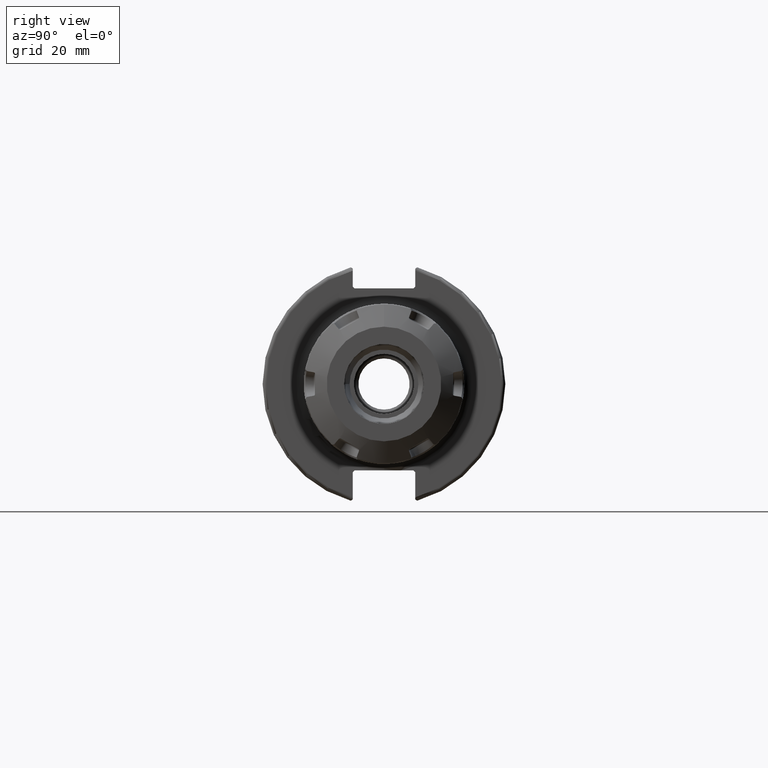
[diagram: clean part render]
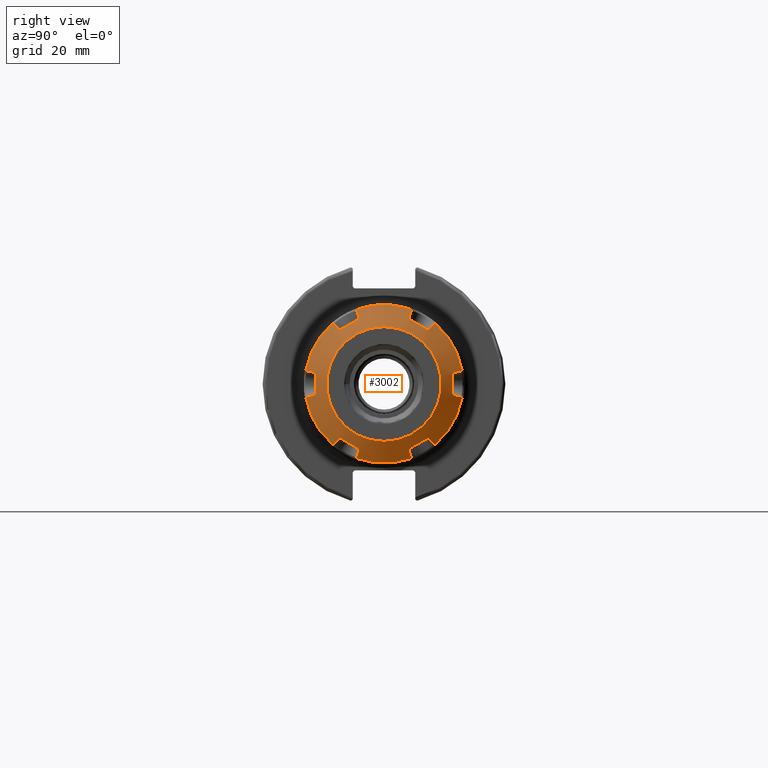
[diagram: same view with one face highlighted and labeled with its STEP entity id]
A machine part, right view. The second image highlights one B-rep face of the part: STEP entity #3002.
In plain terms, the highlighted conical surface has half-angle 60 deg.
Its self-contained STEP definition (entity closure, byte-faithful):
#181=B_SPLINE_CURVE_WITH_KNOTS('',3,(#5156,#5157,#5158,#5159,#5160),
 .UNSPECIFIED.,.F.,.F.,(4,1,4),(0.,0.5,1.),.UNSPECIFIED.);
#182=B_SPLINE_CURVE_WITH_KNOTS('',3,(#5164,#5165,#5166,#5167,#5168,#5169,
#5170,#5171,#5172,#5173),.UNSPECIFIED.,.F.,.F.,(4,2,2,2,4),(0.000528578936882645,
0.0215655882195211,0.0431311764390421,0.0615000722303087,0.0730576288802265),
 .UNSPECIFIED.);
#183=B_SPLINE_CURVE_WITH_KNOTS('',3,(#5175,#5176,#5177,#5178,#5179,#5180,
#5181),.UNSPECIFIED.,.F.,.F.,(4,1,1,1,4),(0.,0.25,0.5,0.75,1.),
 .UNSPECIFIED.);
#184=B_SPLINE_CURVE_WITH_KNOTS('',3,(#5183,#5184,#5185,#5186,#5187,#5188,
#5189,#5190,#5191,#5192),.UNSPECIFIED.,.F.,.F.,(4,2,2,2,4),(0.252069009809256,
0.263626566458915,0.281995462250182,0.303561050469703,0.324598059752141),
 .UNSPECIFIED.);
#185=B_SPLINE_CURVE_WITH_KNOTS('',3,(#5196,#5197,#5198,#5199,#5200),
 .UNSPECIFIED.,.F.,.F.,(4,1,4),(0.,0.5,1.),.UNSPECIFIED.);
#186=B_SPLINE_CURVE_WITH_KNOTS('',3,(#5204,#5205,#5206,#5207,#5208),
 .UNSPECIFIED.,.F.,.F.,(4,1,4),(0.,0.5,1.),.UNSPECIFIED.);
#187=B_SPLINE_CURVE_WITH_KNOTS('',3,(#5212,#5213,#5214,#5215,#5216,#5217,
#5218,#5219,#5220,#5221),.UNSPECIFIED.,.F.,.F.,(4,2,2,2,4),(0.000528578936294754,
0.0215655882195209,0.0431311764390418,0.0615000722303084,0.073057628880325),
 .UNSPECIFIED.);
#188=B_SPLINE_CURVE_WITH_KNOTS('',3,(#5223,#5224,#5225,#5226,#5227,#5228,
#5229),.UNSPECIFIED.,.F.,.F.,(4,1,1,1,4),(0.,0.25,0.5,0.75,1.),
 .UNSPECIFIED.);
#189=B_SPLINE_CURVE_WITH_KNOTS('',3,(#5231,#5232,#5233,#5234,#5235,#5236,
#5237,#5238,#5239,#5240),.UNSPECIFIED.,.F.,.F.,(4,2,2,2,4),(0.252069009808898,
0.263626566458915,0.281995462250181,0.303561050469702,0.324598059752928),
 .UNSPECIFIED.);
#190=B_SPLINE_CURVE_WITH_KNOTS('',3,(#5244,#5245,#5246,#5247,#5248),
 .UNSPECIFIED.,.F.,.F.,(4,1,4),(0.,0.5,1.),.UNSPECIFIED.);
#191=B_SPLINE_CURVE_WITH_KNOTS('',3,(#5252,#5253,#5254,#5255,#5256),
 .UNSPECIFIED.,.F.,.F.,(4,1,4),(0.,0.5,1.),.UNSPECIFIED.);
#192=B_SPLINE_CURVE_WITH_KNOTS('',3,(#5260,#5261,#5262,#5263,#5264,#5265,
#5266,#5267,#5268,#5269),.UNSPECIFIED.,.F.,.F.,(4,2,2,2,4),(0.000528578937082939,
0.021565588219521,0.0431311764390419,0.0615000722303086,0.0730576288799682),
 .UNSPECIFIED.);
#193=B_SPLINE_CURVE_WITH_KNOTS('',3,(#5271,#5272,#5273,#5274,#5275,#5276,
#5277),.UNSPECIFIED.,.F.,.F.,(4,1,1,1,4),(0.,0.25,0.5,0.75,1.),
 .UNSPECIFIED.);
#194=B_SPLINE_CURVE_WITH_KNOTS('',3,(#5279,#5280,#5281,#5282,#5283,#5284,
#5285,#5286,#5287,#5288),.UNSPECIFIED.,.F.,.F.,(4,2,2,2,4),(0.252069009808997,
0.263626566458915,0.281995462250181,0.303561050469702,0.324598059752341),
 .UNSPECIFIED.);
#195=B_SPLINE_CURVE_WITH_KNOTS('',3,(#5292,#5293,#5294,#5295,#5296),
 .UNSPECIFIED.,.F.,.F.,(4,1,4),(0.,0.5,1.),.UNSPECIFIED.);
#196=B_SPLINE_CURVE_WITH_KNOTS('',3,(#5300,#5301,#5302,#5303,#5304),
 .UNSPECIFIED.,.F.,.F.,(4,1,4),(0.,0.5,1.),.UNSPECIFIED.);
#197=B_SPLINE_CURVE_WITH_KNOTS('',3,(#5308,#5309,#5310,#5311,#5312,#5313,
#5314,#5315,#5316,#5317),.UNSPECIFIED.,.F.,.F.,(4,2,2,2,4),(0.000528578936882645,
0.0215655882195211,0.0431311764390421,0.0615000722303087,0.0730576288802265),
 .UNSPECIFIED.);
#198=B_SPLINE_CURVE_WITH_KNOTS('',3,(#5319,#5320,#5321,#5322,#5323,#5324,
#5325),.UNSPECIFIED.,.F.,.F.,(4,1,1,1,4),(0.,0.25,0.5,0.75,1.),
 .UNSPECIFIED.);
#199=B_SPLINE_CURVE_WITH_KNOTS('',3,(#5327,#5328,#5329,#5330,#5331,#5332,
#5333,#5334,#5335,#5336),.UNSPECIFIED.,.F.,.F.,(4,2,2,2,4),(0.252069009809255,
0.263626566458915,0.281995462250182,0.303561050469703,0.324598059752141),
 .UNSPECIFIED.);
#200=B_SPLINE_CURVE_WITH_KNOTS('',3,(#5340,#5341,#5342,#5343,#5344),
 .UNSPECIFIED.,.F.,.F.,(4,1,4),(0.,0.5,1.),.UNSPECIFIED.);
#201=B_SPLINE_CURVE_WITH_KNOTS('',3,(#5348,#5349,#5350,#5351,#5352),
 .UNSPECIFIED.,.F.,.F.,(4,1,4),(0.,0.5,1.),.UNSPECIFIED.);
#202=B_SPLINE_CURVE_WITH_KNOTS('',3,(#5356,#5357,#5358,#5359,#5360,#5361,
#5362,#5363,#5364,#5365),.UNSPECIFIED.,.F.,.F.,(4,2,2,2,4),(0.000528578936294754,
0.0215655882195209,0.0431311764390418,0.0615000722303084,0.0730576288803251),
 .UNSPECIFIED.);
#203=B_SPLINE_CURVE_WITH_KNOTS('',3,(#5367,#5368,#5369,#5370,#5371,#5372,
#5373),.UNSPECIFIED.,.F.,.F.,(4,1,1,1,4),(0.,0.25,0.5,0.75,1.),
 .UNSPECIFIED.);
#204=B_SPLINE_CURVE_WITH_KNOTS('',3,(#5375,#5376,#5377,#5378,#5379,#5380,
#5381,#5382,#5383,#5384),.UNSPECIFIED.,.F.,.F.,(4,2,2,2,4),(0.252069009808898,
0.263626566458915,0.281995462250181,0.303561050469702,0.324598059752928),
 .UNSPECIFIED.);
#205=B_SPLINE_CURVE_WITH_KNOTS('',3,(#5388,#5389,#5390,#5391,#5392),
 .UNSPECIFIED.,.F.,.F.,(4,1,4),(0.,0.5,1.),.UNSPECIFIED.);
#206=B_SPLINE_CURVE_WITH_KNOTS('',3,(#5396,#5397,#5398,#5399,#5400),
 .UNSPECIFIED.,.F.,.F.,(4,1,4),(0.,0.5,1.),.UNSPECIFIED.);
#207=B_SPLINE_CURVE_WITH_KNOTS('',3,(#5404,#5405,#5406,#5407,#5408,#5409,
#5410,#5411,#5412,#5413),.UNSPECIFIED.,.F.,.F.,(4,2,2,2,4),(0.000528578937082939,
0.021565588219521,0.0431311764390419,0.0615000722303086,0.0730576288799681),
 .UNSPECIFIED.);
#208=B_SPLINE_CURVE_WITH_KNOTS('',3,(#5415,#5416,#5417,#5418,#5419,#5420,
#5421),.UNSPECIFIED.,.F.,.F.,(4,1,1,1,4),(0.,0.25,0.5,0.75,1.),
 .UNSPECIFIED.);
#209=B_SPLINE_CURVE_WITH_KNOTS('',3,(#5423,#5424,#5425,#5426,#5427,#5428,
#5429,#5430,#5431,#5432),.UNSPECIFIED.,.F.,.F.,(4,2,2,2,4),(0.252069009808997,
0.263626566458915,0.281995462250181,0.303561050469702,0.324598059752341),
 .UNSPECIFIED.);
#210=B_SPLINE_CURVE_WITH_KNOTS('',3,(#5436,#5437,#5438,#5439,#5440),
 .UNSPECIFIED.,.F.,.F.,(4,1,4),(0.,0.5,1.),.UNSPECIFIED.);
#499=FACE_OUTER_BOUND('',#690,.T.);
#690=EDGE_LOOP('',(#2517,#2518,#2519,#2520,#2521,#2522,#2523,#2524,#2525,
#2526,#2527,#2528,#2529,#2530,#2531,#2532,#2533,#2534,#2535,#2536,#2537,
#2538,#2539,#2540,#2541,#2542,#2543,#2544,#2545,#2546,#2547,#2548,#2549,
#2550,#2551,#2552,#2553,#2554,#2555,#2556,#2557,#2558,#2559,#2560,#2561,
#2562,#2563,#2564,#2565,#2566,#2567,#2568));
#859=LINE('',#5162,#1046);
#860=LINE('',#5194,#1047);
#861=LINE('',#5210,#1048);
#862=LINE('',#5242,#1049);
#863=LINE('',#5258,#1050);
#864=LINE('',#5290,#1051);
#865=LINE('',#5306,#1052);
#866=LINE('',#5338,#1053);
#867=LINE('',#5354,#1054);
#868=LINE('',#5386,#1055);
#869=LINE('',#5402,#1056);
#870=LINE('',#5434,#1057);
#871=LINE('',#5442,#1058);
#1046=VECTOR('',#4006,10.);
#1047=VECTOR('',#4007,10.);
#1048=VECTOR('',#4010,10.);
#1049=VECTOR('',#4011,10.);
#1050=VECTOR('',#4014,10.);
#1051=VECTOR('',#4015,10.);
#1052=VECTOR('',#4018,10.);
#1053=VECTOR('',#4019,10.);
#1054=VECTOR('',#4022,10.);
#1055=VECTOR('',#4023,10.);
#1056=VECTOR('',#4026,10.);
#1057=VECTOR('',#4027,10.);
#1058=VECTOR('',#4030,17.87499999999);
#1228=CIRCLE('',#3361,15.);
#1229=CIRCLE('',#3363,20.75);
#1230=CIRCLE('',#3364,20.75);
#1231=CIRCLE('',#3365,20.75);
#1232=CIRCLE('',#3366,20.75);
#1233=CIRCLE('',#3367,20.75);
#1234=CIRCLE('',#3368,20.75);
#1235=CIRCLE('',#3369,20.75);
#1441=VERTEX_POINT('',#5149);
#1442=VERTEX_POINT('',#5152);
#1443=VERTEX_POINT('',#5153);
#1444=VERTEX_POINT('',#5155);
#1445=VERTEX_POINT('',#5161);
#1446=VERTEX_POINT('',#5163);
#1447=VERTEX_POINT('',#5174);
#1448=VERTEX_POINT('',#5182);
#1449=VERTEX_POINT('',#5193);
#1450=VERTEX_POINT('',#5195);
#1451=VERTEX_POINT('',#5201);
#1452=VERTEX_POINT('',#5203);
#1453=VERTEX_POINT('',#5209);
#1454=VERTEX_POINT('',#5211);
#1455=VERTEX_POINT('',#5222);
#1456=VERTEX_POINT('',#5230);
#1457=VERTEX_POINT('',#5241);
#1458=VERTEX_POINT('',#5243);
#1459=VERTEX_POINT('',#5249);
#1460=VERTEX_POINT('',#5251);
#1461=VERTEX_POINT('',#5257);
#1462=VERTEX_POINT('',#5259);
#1463=VERTEX_POINT('',#5270);
#1464=VERTEX_POINT('',#5278);
#1465=VERTEX_POINT('',#5289);
#1466=VERTEX_POINT('',#5291);
#1467=VERTEX_POINT('',#5297);
#1468=VERTEX_POINT('',#5299);
#1469=VERTEX_POINT('',#5305);
#1470=VERTEX_POINT('',#5307);
#1471=VERTEX_POINT('',#5318);
#1472=VERTEX_POINT('',#5326);
#1473=VERTEX_POINT('',#5337);
#1474=VERTEX_POINT('',#5339);
#1475=VERTEX_POINT('',#5345);
#1476=VERTEX_POINT('',#5347);
#1477=VERTEX_POINT('',#5353);
#1478=VERTEX_POINT('',#5355);
#1479=VERTEX_POINT('',#5366);
#1480=VERTEX_POINT('',#5374);
#1481=VERTEX_POINT('',#5385);
#1482=VERTEX_POINT('',#5387);
#1483=VERTEX_POINT('',#5393);
#1484=VERTEX_POINT('',#5395);
#1485=VERTEX_POINT('',#5401);
#1486=VERTEX_POINT('',#5403);
#1487=VERTEX_POINT('',#5414);
#1488=VERTEX_POINT('',#5422);
#1489=VERTEX_POINT('',#5433);
#1490=VERTEX_POINT('',#5435);
#1814=EDGE_CURVE('',#1441,#1441,#1228,.T.);
#1815=EDGE_CURVE('',#1442,#1443,#1229,.T.);
#1816=EDGE_CURVE('',#1442,#1444,#181,.T.);
#1817=EDGE_CURVE('',#1445,#1444,#859,.T.);
#1818=EDGE_CURVE('',#1445,#1446,#182,.T.);
#1819=EDGE_CURVE('',#1447,#1446,#183,.T.);
#1820=EDGE_CURVE('',#1447,#1448,#184,.T.);
#1821=EDGE_CURVE('',#1449,#1448,#860,.T.);
#1822=EDGE_CURVE('',#1449,#1450,#185,.T.);
#1823=EDGE_CURVE('',#1450,#1451,#1230,.T.);
#1824=EDGE_CURVE('',#1451,#1452,#186,.T.);
#1825=EDGE_CURVE('',#1453,#1452,#861,.T.);
#1826=EDGE_CURVE('',#1453,#1454,#187,.T.);
#1827=EDGE_CURVE('',#1455,#1454,#188,.T.);
#1828=EDGE_CURVE('',#1455,#1456,#189,.T.);
#1829=EDGE_CURVE('',#1457,#1456,#862,.T.);
#1830=EDGE_CURVE('',#1457,#1458,#190,.T.);
#1831=EDGE_CURVE('',#1458,#1459,#1231,.T.);
#1832=EDGE_CURVE('',#1459,#1460,#191,.T.);
#1833=EDGE_CURVE('',#1461,#1460,#863,.T.);
#1834=EDGE_CURVE('',#1461,#1462,#192,.T.);
#1835=EDGE_CURVE('',#1463,#1462,#193,.T.);
#1836=EDGE_CURVE('',#1463,#1464,#194,.T.);
#1837=EDGE_CURVE('',#1465,#1464,#864,.T.);
#1838=EDGE_CURVE('',#1465,#1466,#195,.T.);
#1839=EDGE_CURVE('',#1467,#1466,#1232,.T.);
#1840=EDGE_CURVE('',#1467,#1468,#196,.T.);
#1841=EDGE_CURVE('',#1469,#1468,#865,.T.);
#1842=EDGE_CURVE('',#1469,#1470,#197,.T.);
#1843=EDGE_CURVE('',#1471,#1470,#198,.T.);
#1844=EDGE_CURVE('',#1471,#1472,#199,.T.);
#1845=EDGE_CURVE('',#1473,#1472,#866,.T.);
#1846=EDGE_CURVE('',#1473,#1474,#200,.T.);
#1847=EDGE_CURVE('',#1474,#1475,#1233,.T.);
#1848=EDGE_CURVE('',#1475,#1476,#201,.T.);
#1849=EDGE_CURVE('',#1477,#1476,#867,.T.);
#1850=EDGE_CURVE('',#1477,#1478,#202,.T.);
#1851=EDGE_CURVE('',#1479,#1478,#203,.T.);
#1852=EDGE_CURVE('',#1479,#1480,#204,.T.);
#1853=EDGE_CURVE('',#1481,#1480,#868,.T.);
#1854=EDGE_CURVE('',#1481,#1482,#205,.T.);
#1855=EDGE_CURVE('',#1482,#1483,#1234,.T.);
#1856=EDGE_CURVE('',#1483,#1484,#206,.T.);
#1857=EDGE_CURVE('',#1485,#1484,#869,.T.);
#1858=EDGE_CURVE('',#1485,#1486,#207,.T.);
#1859=EDGE_CURVE('',#1487,#1486,#208,.T.);
#1860=EDGE_CURVE('',#1487,#1488,#209,.T.);
#1861=EDGE_CURVE('',#1489,#1488,#870,.T.);
#1862=EDGE_CURVE('',#1489,#1490,#210,.T.);
#1863=EDGE_CURVE('',#1443,#1490,#1235,.T.);
#1864=EDGE_CURVE('',#1443,#1441,#871,.T.);
#2517=ORIENTED_EDGE('',*,*,#1815,.F.);
#2518=ORIENTED_EDGE('',*,*,#1816,.T.);
#2519=ORIENTED_EDGE('',*,*,#1817,.F.);
#2520=ORIENTED_EDGE('',*,*,#1818,.T.);
#2521=ORIENTED_EDGE('',*,*,#1819,.F.);
#2522=ORIENTED_EDGE('',*,*,#1820,.T.);
#2523=ORIENTED_EDGE('',*,*,#1821,.F.);
#2524=ORIENTED_EDGE('',*,*,#1822,.T.);
#2525=ORIENTED_EDGE('',*,*,#1823,.T.);
#2526=ORIENTED_EDGE('',*,*,#1824,.T.);
#2527=ORIENTED_EDGE('',*,*,#1825,.F.);
#2528=ORIENTED_EDGE('',*,*,#1826,.T.);
#2529=ORIENTED_EDGE('',*,*,#1827,.F.);
#2530=ORIENTED_EDGE('',*,*,#1828,.T.);
#2531=ORIENTED_EDGE('',*,*,#1829,.F.);
#2532=ORIENTED_EDGE('',*,*,#1830,.T.);
#2533=ORIENTED_EDGE('',*,*,#1831,.T.);
#2534=ORIENTED_EDGE('',*,*,#1832,.T.);
#2535=ORIENTED_EDGE('',*,*,#1833,.F.);
#2536=ORIENTED_EDGE('',*,*,#1834,.T.);
#2537=ORIENTED_EDGE('',*,*,#1835,.F.);
#2538=ORIENTED_EDGE('',*,*,#1836,.T.);
#2539=ORIENTED_EDGE('',*,*,#1837,.F.);
#2540=ORIENTED_EDGE('',*,*,#1838,.T.);
#2541=ORIENTED_EDGE('',*,*,#1839,.F.);
#2542=ORIENTED_EDGE('',*,*,#1840,.T.);
#2543=ORIENTED_EDGE('',*,*,#1841,.F.);
#2544=ORIENTED_EDGE('',*,*,#1842,.T.);
#2545=ORIENTED_EDGE('',*,*,#1843,.F.);
#2546=ORIENTED_EDGE('',*,*,#1844,.T.);
#2547=ORIENTED_EDGE('',*,*,#1845,.F.);
#2548=ORIENTED_EDGE('',*,*,#1846,.T.);
#2549=ORIENTED_EDGE('',*,*,#1847,.T.);
#2550=ORIENTED_EDGE('',*,*,#1848,.T.);
#2551=ORIENTED_EDGE('',*,*,#1849,.F.);
#2552=ORIENTED_EDGE('',*,*,#1850,.T.);
#2553=ORIENTED_EDGE('',*,*,#1851,.F.);
#2554=ORIENTED_EDGE('',*,*,#1852,.T.);
#2555=ORIENTED_EDGE('',*,*,#1853,.F.);
#2556=ORIENTED_EDGE('',*,*,#1854,.T.);
#2557=ORIENTED_EDGE('',*,*,#1855,.T.);
#2558=ORIENTED_EDGE('',*,*,#1856,.T.);
#2559=ORIENTED_EDGE('',*,*,#1857,.F.);
#2560=ORIENTED_EDGE('',*,*,#1858,.T.);
#2561=ORIENTED_EDGE('',*,*,#1859,.F.);
#2562=ORIENTED_EDGE('',*,*,#1860,.T.);
#2563=ORIENTED_EDGE('',*,*,#1861,.F.);
#2564=ORIENTED_EDGE('',*,*,#1862,.T.);
#2565=ORIENTED_EDGE('',*,*,#1863,.F.);
#2566=ORIENTED_EDGE('',*,*,#1864,.T.);
#2567=ORIENTED_EDGE('',*,*,#1814,.F.);
#2568=ORIENTED_EDGE('',*,*,#1864,.F.);
#2893=CONICAL_SURFACE('',#3362,17.87499999999,1.0471975511966);
#3002=ADVANCED_FACE('',(#499),#2893,.T.);
#3361=AXIS2_PLACEMENT_3D('',#5150,#4000,#4001);
#3362=AXIS2_PLACEMENT_3D('',#5151,#4002,#4003);
#3363=AXIS2_PLACEMENT_3D('',#5154,#4004,#4005);
#3364=AXIS2_PLACEMENT_3D('',#5202,#4008,#4009);
#3365=AXIS2_PLACEMENT_3D('',#5250,#4012,#4013);
#3366=AXIS2_PLACEMENT_3D('',#5298,#4016,#4017);
#3367=AXIS2_PLACEMENT_3D('',#5346,#4020,#4021);
#3368=AXIS2_PLACEMENT_3D('',#5394,#4024,#4025);
#3369=AXIS2_PLACEMENT_3D('',#5441,#4028,#4029);
#4000=DIRECTION('center_axis',(1.,0.,0.));
#4001=DIRECTION('ref_axis',(0.,0.,1.));
#4002=DIRECTION('center_axis',(-1.,0.,0.));
#4003=DIRECTION('ref_axis',(0.,0.,-1.));
#4004=DIRECTION('center_axis',(-1.,0.,0.));
#4005=DIRECTION('ref_axis',(0.,-0.338154383362992,0.941090650794277));
#4006=DIRECTION('',(-0.499985630569931,-0.296200970137599,0.81380547707246));
#4007=DIRECTION('',(0.499985630568637,0.556675731813364,-0.663420303303222));
#4008=DIRECTION('center_axis',(1.,0.,0.));
#4009=DIRECTION('ref_axis',(0.,-0.645931219170366,0.76339561179056));
#4010=DIRECTION('',(-0.4999856305701,-0.852876701952219,0.150385173772302));
#4011=DIRECTION('',(0.4999856305701,0.852876701952219,0.150385173772302));
#4012=DIRECTION('center_axis',(1.,0.,0.));
#4013=DIRECTION('ref_axis',(0.,-0.984085602533375,-0.177695039003695));
#4014=DIRECTION('',(-0.499985630568637,-0.556675731813364,-0.663420303303222));
#4015=DIRECTION('',(0.499985630569931,0.296200970137599,0.81380547707246));
#4016=DIRECTION('center_axis',(-1.,0.,0.));
#4017=DIRECTION('ref_axis',(0.,0.338154383362992,-0.941090650794277));
#4018=DIRECTION('',(-0.499985630569931,0.296200970137599,-0.81380547707246));
#4019=DIRECTION('',(0.499985630568637,-0.556675731813364,0.663420303303222));
#4020=DIRECTION('center_axis',(1.,0.,0.));
#4021=DIRECTION('ref_axis',(0.,0.645931219170366,-0.76339561179056));
#4022=DIRECTION('',(-0.4999856305701,0.852876701952219,-0.150385173772302));
#4023=DIRECTION('',(0.4999856305701,-0.852876701952219,-0.150385173772302));
#4024=DIRECTION('center_axis',(1.,0.,0.));
#4025=DIRECTION('ref_axis',(0.,0.984085602533375,0.177695039003695));
#4026=DIRECTION('',(-0.499985630568637,0.556675731813364,0.663420303303222));
#4027=DIRECTION('',(0.499985630569931,-0.296200970137599,-0.81380547707246));
#4028=DIRECTION('center_axis',(-1.,0.,0.));
#4029=DIRECTION('ref_axis',(0.,-0.338154383362992,0.941090650794277));
#4030=DIRECTION('',(0.5,-1.06057523872491E-16,-0.866025403784439));
#5149=CARTESIAN_POINT('',(10.,0.,15.));
#5150=CARTESIAN_POINT('Origin',(10.,0.,0.));
#5151=CARTESIAN_POINT('Origin',(8.340117976085,0.,0.));
#5152=CARTESIAN_POINT('',(6.68023595216,-7.016703454783,19.52763100398));
#5153=CARTESIAN_POINT('',(6.68023595215821,2.54114210823094E-15,20.7500000000015));
#5154=CARTESIAN_POINT('Origin',(6.68023595216,0.,0.));
#5155=CARTESIAN_POINT('',(6.825682591738,-7.171427942968,19.20265255629));
#5156=CARTESIAN_POINT('Ctrl Pts',(6.68023595216,-7.016703454783,19.52763100398));
#5157=CARTESIAN_POINT('Ctrl Pts',(6.704787157248,-7.042656692872,19.47311963913));
#5158=CARTESIAN_POINT('Ctrl Pts',(6.753579391822,-7.094397359189,19.36444517125));
#5159=CARTESIAN_POINT('Ctrl Pts',(6.801751497951,-7.145806366539,19.25646730943));
#5160=CARTESIAN_POINT('Ctrl Pts',(6.825682591738,-7.171427942968,19.20265255629));
#5161=CARTESIAN_POINT('',(7.882383512005,-6.545418276707,17.48270513388));
#5162=CARTESIAN_POINT('',(7.882383512005,-6.545418276707,17.48270513388));
#5163=CARTESIAN_POINT('',(8.161702976639,-6.7652645871,16.87868236033));
#5164=CARTESIAN_POINT('Ctrl Pts',(7.88238351200488,-6.5454182767061,17.4827051338802));
#5165=CARTESIAN_POINT('Ctrl Pts',(7.91757308100159,-6.52457123031395,17.4254283446545));
#5166=CARTESIAN_POINT('Ctrl Pts',(7.9552484221707,-6.51324235909714,17.3600045332163));
#5167=CARTESIAN_POINT('Ctrl Pts',(8.02648755858909,-6.51797087692523,17.2263665624065));
#5168=CARTESIAN_POINT('Ctrl Pts',(8.05991393278653,-6.53477525858298,17.1581081869268));
#5169=CARTESIAN_POINT('Ctrl Pts',(8.10920621105696,-6.58768370146919,17.0463470263659));
#5170=CARTESIAN_POINT('Ctrl Pts',(8.12973777953577,-6.62383045448549,16.9942231906329));
#5171=CARTESIAN_POINT('Ctrl Pts',(8.15229926979325,-6.69836013981006,16.9229037408109));
#5172=CARTESIAN_POINT('Ctrl Pts',(8.15844945494287,-6.73087400881105,16.8985377699606));
#5173=CARTESIAN_POINT('Ctrl Pts',(8.16170297663675,-6.7652645870992,16.8786823603282));
#5174=CARTESIAN_POINT('',(8.161702976639,-11.2347354129,14.29823217591));
#5175=CARTESIAN_POINT('Ctrl Pts',(8.161702976639,-11.2347354129,14.29823217591));
#5176=CARTESIAN_POINT('Ctrl Pts',(8.196946708672,-10.86219991454,14.51331564618));
#5177=CARTESIAN_POINT('Ctrl Pts',(8.250134664999,-10.11721577476,14.94343243982));
#5178=CARTESIAN_POINT('Ctrl Pts',(8.276856688426,-8.999986418851,15.5884651092));
#5179=CARTESIAN_POINT('Ctrl Pts',(8.250133735868,-7.882770110197,16.23349024574));
#5180=CARTESIAN_POINT('Ctrl Pts',(8.196946175203,-7.137794446555,16.66360214569));
#5181=CARTESIAN_POINT('Ctrl Pts',(8.161702976639,-6.7652645871,16.87868236033));
#5182=CARTESIAN_POINT('',(7.882383512005,-11.86775763446,14.40985107296));
#5183=CARTESIAN_POINT('Ctrl Pts',(8.16170297663636,-11.2347354129032,14.2982321759159));
#5184=CARTESIAN_POINT('Ctrl Pts',(8.15844945494243,-11.2691259911908,14.2783767662844));
#5185=CARTESIAN_POINT('Ctrl Pts',(8.15229926979289,-11.3064844754347,14.2624019151798));
#5186=CARTESIAN_POINT('Ctrl Pts',(8.1297377795356,-11.4055137734259,14.233517039264));
#5187=CARTESIAN_POINT('Ctrl Pts',(8.10920621105679,-11.4687277158215,14.228274950754));
#5188=CARTESIAN_POINT('Ctrl Pts',(8.05991393278637,-11.5919699414668,14.2383354754203));
#5189=CARTESIAN_POINT('Ctrl Pts',(8.02648755858892,-11.6594856194821,14.2579116417497));
#5190=CARTESIAN_POINT('Ctrl Pts',(7.95524842217086,-11.7775837560271,14.3206356105929));
#5191=CARTESIAN_POINT('Ctrl Pts',(7.91757308100213,-11.8285780031362,14.3631586065815));
#5192=CARTESIAN_POINT('Ctrl Pts',(7.88238351200571,-11.8677576344567,14.4098510729634));
#5193=CARTESIAN_POINT('',(6.825682591738,-13.04427096231,15.81196505817));
#5194=CARTESIAN_POINT('',(6.825682591738,-13.04427096231,15.81196505817));
#5195=CARTESIAN_POINT('',(6.68023595216,-13.40307279778,15.84045894465));
#5196=CARTESIAN_POINT('Ctrl Pts',(6.825682591738,-13.04427096231,15.81196505817));
#5197=CARTESIAN_POINT('Ctrl Pts',(6.801772251375,-13.10363516757,15.81667940675));
#5198=CARTESIAN_POINT('Ctrl Pts',(6.753621129435,-13.22279980844,15.82614274672));
#5199=CARTESIAN_POINT('Ctrl Pts',(6.704808138864,-13.34283651763,15.83567534112));
#5200=CARTESIAN_POINT('Ctrl Pts',(6.68023595216,-13.40307279778,15.84045894465));
#5201=CARTESIAN_POINT('',(6.68023595216,-20.41977625257,3.687172059327));
#5202=CARTESIAN_POINT('Origin',(6.68023595216,0.,0.));
#5203=CARTESIAN_POINT('',(6.825682591738,-20.21569890528,3.390687498127));
#5204=CARTESIAN_POINT('Ctrl Pts',(6.68023595216,-20.41977625257,3.687172059327));
#5205=CARTESIAN_POINT('Ctrl Pts',(6.704799687283,-20.3855271743,3.637414832095));
#5206=CARTESIAN_POINT('Ctrl Pts',(6.753604317172,-20.31726515581,3.538243440133));
#5207=CARTESIAN_POINT('Ctrl Pts',(6.801763891711,-20.2494755586,3.439758384099));
#5208=CARTESIAN_POINT('Ctrl Pts',(6.825682591738,-20.21569890528,3.390687498127));
#5209=CARTESIAN_POINT('',(7.882383512005,-18.41317591117,3.072854060917));
#5210=CARTESIAN_POINT('',(7.882383512005,-18.41317591117,3.072854060917));
#5211=CARTESIAN_POINT('',(8.161702976639,-18.,2.580450184411));
#5212=CARTESIAN_POINT('Ctrl Pts',(7.88238351200324,-18.4131759111689,3.07285406091752));
#5213=CARTESIAN_POINT('Ctrl Pts',(7.91757308100079,-18.3531492334545,3.06226973807448));
#5214=CARTESIAN_POINT('Ctrl Pts',(7.95524842217103,-18.2908261151263,3.03936892262507));
#5215=CARTESIAN_POINT('Ctrl Pts',(8.0264875585904,-18.1774564964073,2.96845492065783));
#5216=CARTESIAN_POINT('Ctrl Pts',(8.05991393278785,-18.1267452000497,2.91977271150746));
#5217=CARTESIAN_POINT('Ctrl Pts',(8.10920621105827,-18.0564114172907,2.8180720756129));
#5218=CARTESIAN_POINT('Ctrl Pts',(8.12973777953708,-18.0293442279114,2.76070615136998));
#5219=CARTESIAN_POINT('Ctrl Pts',(8.15229926979464,-18.0048446152438,2.6605018256315));
#5220=CARTESIAN_POINT('Ctrl Pts',(8.15844945494429,-18.,2.6201610036758));
#5221=CARTESIAN_POINT('Ctrl Pts',(8.16170297663815,-18.,2.58045018441093));
#5222=CARTESIAN_POINT('',(8.161702976639,-18.,-2.580450184411));
#5223=CARTESIAN_POINT('Ctrl Pts',(8.161702976639,-18.,-2.580450184411));
#5224=CARTESIAN_POINT('Ctrl Pts',(8.196946701397,-18.,-2.150283332677));
#5225=CARTESIAN_POINT('Ctrl Pts',(8.250134657495,-18.,-1.290049848268));
#5226=CARTESIAN_POINT('Ctrl Pts',(8.276856692047,-18.,1.567320733414E-5));
#5227=CARTESIAN_POINT('Ctrl Pts',(8.250133728888,-18.,1.290066137805));
#5228=CARTESIAN_POINT('Ctrl Pts',(8.196946168226,-18.,2.150289840288));
#5229=CARTESIAN_POINT('Ctrl Pts',(8.161702976639,-18.,2.580450184411));
#5230=CARTESIAN_POINT('',(7.882383512005,-18.41317591117,-3.072854060917));
#5231=CARTESIAN_POINT('Ctrl Pts',(8.16170297663815,-18.,-2.58045018441093));
#5232=CARTESIAN_POINT('Ctrl Pts',(8.15844945494429,-18.,-2.6201610036758));
#5233=CARTESIAN_POINT('Ctrl Pts',(8.15229926979464,-18.0048446152438,-2.6605018256315));
#5234=CARTESIAN_POINT('Ctrl Pts',(8.12973777953708,-18.0293442279114,-2.76070615136998));
#5235=CARTESIAN_POINT('Ctrl Pts',(8.10920621105827,-18.0564114172907,-2.8180720756129));
#5236=CARTESIAN_POINT('Ctrl Pts',(8.05991393278785,-18.1267452000497,-2.91977271150746));
#5237=CARTESIAN_POINT('Ctrl Pts',(8.0264875585904,-18.1774564964073,-2.96845492065783));
#5238=CARTESIAN_POINT('Ctrl Pts',(7.95524842217103,-18.2908261151263,-3.03936892262507));
#5239=CARTESIAN_POINT('Ctrl Pts',(7.91757308100079,-18.3531492334545,-3.06226973807448));
#5240=CARTESIAN_POINT('Ctrl Pts',(7.88238351200324,-18.4131759111689,-3.07285406091752));
#5241=CARTESIAN_POINT('',(6.825682591738,-20.21569890528,-3.390687498127));
#5242=CARTESIAN_POINT('',(6.825682591738,-20.21569890528,-3.390687498127));
#5243=CARTESIAN_POINT('',(6.68023595216,-20.41977625257,-3.687172059327));
#5244=CARTESIAN_POINT('Ctrl Pts',(6.825682591738,-20.21569890528,-3.390687498127));
#5245=CARTESIAN_POINT('Ctrl Pts',(6.801802913228,-20.24942045459,-3.439678328728));
#5246=CARTESIAN_POINT('Ctrl Pts',(6.753682793811,-20.31715504619,-3.538083472348));
#5247=CARTESIAN_POINT('Ctrl Pts',(6.704839137855,-20.38547216859,-3.637334919529));
#5248=CARTESIAN_POINT('Ctrl Pts',(6.68023595216,-20.41977625257,-3.687172059327));
#5249=CARTESIAN_POINT('',(6.68023595216,-13.40307279778,-15.84045894465));
#5250=CARTESIAN_POINT('Origin',(6.68023595216,0.,0.));
#5251=CARTESIAN_POINT('',(6.825682591738,-13.04427096231,-15.81196505817));
#5252=CARTESIAN_POINT('Ctrl Pts',(6.68023595216,-13.40307279778,-15.84045894465));
#5253=CARTESIAN_POINT('Ctrl Pts',(6.704867770063,-13.34269033766,-15.83566373238));
#5254=CARTESIAN_POINT('Ctrl Pts',(6.753739749803,-13.2225071874,-15.82611950852));
#5255=CARTESIAN_POINT('Ctrl Pts',(6.801831234037,-13.10348872638,-15.81666777727));
#5256=CARTESIAN_POINT('Ctrl Pts',(6.825682591738,-13.04427096231,-15.81196505817));
#5257=CARTESIAN_POINT('',(7.882383512005,-11.86775763446,-14.40985107296));
#5258=CARTESIAN_POINT('',(7.882383512005,-11.86775763446,-14.40985107296));
#5259=CARTESIAN_POINT('',(8.161702976639,-11.2347354129,-14.29823217591));
#5260=CARTESIAN_POINT('Ctrl Pts',(7.88238351200571,-11.8677576344567,-14.4098510729634));
#5261=CARTESIAN_POINT('Ctrl Pts',(7.91757308100214,-11.8285780031362,-14.3631586065815));
#5262=CARTESIAN_POINT('Ctrl Pts',(7.95524842217086,-11.7775837560271,-14.3206356105929));
#5263=CARTESIAN_POINT('Ctrl Pts',(8.02648755858892,-11.6594856194821,-14.2579116417497));
#5264=CARTESIAN_POINT('Ctrl Pts',(8.05991393278637,-11.5919699414668,-14.2383354754203));
#5265=CARTESIAN_POINT('Ctrl Pts',(8.10920621105679,-11.4687277158215,-14.228274950754));
#5266=CARTESIAN_POINT('Ctrl Pts',(8.1297377795356,-11.4055137734259,-14.233517039264));
#5267=CARTESIAN_POINT('Ctrl Pts',(8.15229926979289,-11.3064844754347,-14.2624019151798));
#5268=CARTESIAN_POINT('Ctrl Pts',(8.15844945494243,-11.2691259911908,-14.2783767662844));
#5269=CARTESIAN_POINT('Ctrl Pts',(8.16170297663636,-11.2347354129032,-14.2982321759159));
#5270=CARTESIAN_POINT('',(8.161702976639,-6.7652645871,-16.87868236033));
#5271=CARTESIAN_POINT('Ctrl Pts',(8.161702976639,-6.7652645871,-16.87868236033));
#5272=CARTESIAN_POINT('Ctrl Pts',(8.196946701402,-7.137800008619,-16.66359893443));
#5273=CARTESIAN_POINT('Ctrl Pts',(8.2501346575,-7.882784059363,-16.23348219219));
#5274=CARTESIAN_POINT('Ctrl Pts',(8.276856692044,-9.000013573401,-15.58844943151));
#5275=CARTESIAN_POINT('Ctrl Pts',(8.250133728893,-10.1172300478,-14.94342419928));
#5276=CARTESIAN_POINT('Ctrl Pts',(8.196946168231,-10.86220562714,-14.513312348));
#5277=CARTESIAN_POINT('Ctrl Pts',(8.161702976639,-11.2347354129,-14.29823217591));
#5278=CARTESIAN_POINT('',(7.882383512005,-6.545418276707,-17.48270513388));
#5279=CARTESIAN_POINT('Ctrl Pts',(8.16170297663675,-6.7652645870992,-16.8786823603282));
#5280=CARTESIAN_POINT('Ctrl Pts',(8.15844945494287,-6.73087400881105,-16.8985377699606));
#5281=CARTESIAN_POINT('Ctrl Pts',(8.15229926979325,-6.69836013981006,-16.9229037408109));
#5282=CARTESIAN_POINT('Ctrl Pts',(8.12973777953577,-6.62383045448549,-16.9942231906329));
#5283=CARTESIAN_POINT('Ctrl Pts',(8.10920621105696,-6.58768370146919,-17.0463470263659));
#5284=CARTESIAN_POINT('Ctrl Pts',(8.05991393278654,-6.53477525858298,-17.1581081869268));
#5285=CARTESIAN_POINT('Ctrl Pts',(8.02648755858909,-6.51797087692523,-17.2263665624065));
#5286=CARTESIAN_POINT('Ctrl Pts',(7.9552484221707,-6.51324235909713,-17.3600045332163));
#5287=CARTESIAN_POINT('Ctrl Pts',(7.91757308100158,-6.52457123031395,-17.4254283446545));
#5288=CARTESIAN_POINT('Ctrl Pts',(7.88238351200488,-6.54541827670611,-17.4827051338803));
#5289=CARTESIAN_POINT('',(6.825682591738,-7.171427942968,-19.20265255629));
#5290=CARTESIAN_POINT('',(6.825682591738,-7.171427942968,-19.20265255629));
#5291=CARTESIAN_POINT('',(6.68023595216,-7.016703454783,-19.52763100398));
#5292=CARTESIAN_POINT('Ctrl Pts',(6.825682591738,-7.171427942968,-19.20265255629));
#5293=CARTESIAN_POINT('Ctrl Pts',(6.801800169484,-7.14585847621,-19.25635785991));
#5294=CARTESIAN_POINT('Ctrl Pts',(6.753677275852,-7.094501485456,-19.36422646771));
#5295=CARTESIAN_POINT('Ctrl Pts',(6.704836363943,-7.042708709589,-19.47301038486));
#5296=CARTESIAN_POINT('Ctrl Pts',(6.68023595216,-7.016703454783,-19.52763100398));
#5297=CARTESIAN_POINT('',(6.68023595216,7.016703454783,-19.52763100398));
#5298=CARTESIAN_POINT('Origin',(6.68023595216,0.,0.));
#5299=CARTESIAN_POINT('',(6.825682591738,7.171427942968,-19.20265255629));
#5300=CARTESIAN_POINT('Ctrl Pts',(6.68023595216,7.016703454783,-19.52763100398));
#5301=CARTESIAN_POINT('Ctrl Pts',(6.704868951557,7.042743158167,-19.47293803015));
#5302=CARTESIAN_POINT('Ctrl Pts',(6.75374210006,7.094570444169,-19.364081629));
#5303=CARTESIAN_POINT('Ctrl Pts',(6.801832402682,7.145892986348,-19.25628537591));
#5304=CARTESIAN_POINT('Ctrl Pts',(6.825682591738,7.171427942968,-19.20265255629));
#5305=CARTESIAN_POINT('',(7.882383512005,6.545418276707,-17.48270513388));
#5306=CARTESIAN_POINT('',(7.882383512005,6.545418276707,-17.48270513388));
#5307=CARTESIAN_POINT('',(8.161702976639,6.7652645871,-16.87868236033));
#5308=CARTESIAN_POINT('Ctrl Pts',(7.88238351200488,6.5454182767061,-17.4827051338802));
#5309=CARTESIAN_POINT('Ctrl Pts',(7.91757308100159,6.52457123031395,-17.4254283446545));
#5310=CARTESIAN_POINT('Ctrl Pts',(7.9552484221707,6.51324235909714,-17.3600045332163));
#5311=CARTESIAN_POINT('Ctrl Pts',(8.02648755858909,6.51797087692523,-17.2263665624065));
#5312=CARTESIAN_POINT('Ctrl Pts',(8.05991393278653,6.53477525858298,-17.1581081869268));
#5313=CARTESIAN_POINT('Ctrl Pts',(8.10920621105696,6.58768370146919,-17.0463470263659));
#5314=CARTESIAN_POINT('Ctrl Pts',(8.12973777953577,6.62383045448549,-16.9942231906329));
#5315=CARTESIAN_POINT('Ctrl Pts',(8.15229926979325,6.69836013981006,-16.9229037408109));
#5316=CARTESIAN_POINT('Ctrl Pts',(8.15844945494287,6.73087400881105,-16.8985377699606));
#5317=CARTESIAN_POINT('Ctrl Pts',(8.16170297663675,6.7652645870992,-16.8786823603282));
#5318=CARTESIAN_POINT('',(8.161702976639,11.2347354129,-14.29823217591));
#5319=CARTESIAN_POINT('Ctrl Pts',(8.161702976639,11.2347354129,-14.29823217591));
#5320=CARTESIAN_POINT('Ctrl Pts',(8.196946701402,10.86219999138,-14.51331560181));
#5321=CARTESIAN_POINT('Ctrl Pts',(8.2501346575,10.11721594064,-14.94343234405));
#5322=CARTESIAN_POINT('Ctrl Pts',(8.276856692044,8.999986426599,-15.58846510473));
#5323=CARTESIAN_POINT('Ctrl Pts',(8.250133728893,7.882769952205,-16.23349033696));
#5324=CARTESIAN_POINT('Ctrl Pts',(8.196946168231,7.137794372861,-16.66360218824));
#5325=CARTESIAN_POINT('Ctrl Pts',(8.161702976639,6.7652645871,-16.87868236033));
#5326=CARTESIAN_POINT('',(7.882383512005,11.86775763446,-14.40985107296));
#5327=CARTESIAN_POINT('Ctrl Pts',(8.16170297663636,11.2347354129032,-14.2982321759159));
#5328=CARTESIAN_POINT('Ctrl Pts',(8.15844945494243,11.2691259911908,-14.2783767662844));
#5329=CARTESIAN_POINT('Ctrl Pts',(8.15229926979289,11.3064844754347,-14.2624019151798));
#5330=CARTESIAN_POINT('Ctrl Pts',(8.1297377795356,11.4055137734259,-14.233517039264));
#5331=CARTESIAN_POINT('Ctrl Pts',(8.10920621105679,11.4687277158215,-14.228274950754));
#5332=CARTESIAN_POINT('Ctrl Pts',(8.05991393278637,11.5919699414668,-14.2383354754203));
#5333=CARTESIAN_POINT('Ctrl Pts',(8.02648755858892,11.6594856194821,-14.2579116417497));
#5334=CARTESIAN_POINT('Ctrl Pts',(7.95524842217086,11.7775837560271,-14.3206356105929));
#5335=CARTESIAN_POINT('Ctrl Pts',(7.91757308100214,11.8285780031362,-14.3631586065815));
#5336=CARTESIAN_POINT('Ctrl Pts',(7.88238351200571,11.8677576344567,-14.4098510729634));
#5337=CARTESIAN_POINT('',(6.825682591738,13.04427096231,-15.81196505817));
#5338=CARTESIAN_POINT('',(6.825682591738,13.04427096231,-15.81196505817));
#5339=CARTESIAN_POINT('',(6.68023595216,13.40307279778,-15.84045894465));
#5340=CARTESIAN_POINT('Ctrl Pts',(6.825682591738,13.04427096231,-15.81196505817));
#5341=CARTESIAN_POINT('Ctrl Pts',(6.801787224387,13.10359799282,-15.81667645456));
#5342=CARTESIAN_POINT('Ctrl Pts',(6.753651241858,13.22272552533,-15.8261368476));
#5343=CARTESIAN_POINT('Ctrl Pts',(6.70482327651,13.34279940919,-15.83567239419));
#5344=CARTESIAN_POINT('Ctrl Pts',(6.68023595216,13.40307279778,-15.84045894465));
#5345=CARTESIAN_POINT('',(6.68023595216,20.41977625257,-3.687172059327));
#5346=CARTESIAN_POINT('Origin',(6.68023595216,0.,0.));
#5347=CARTESIAN_POINT('',(6.825682591738,20.21569890528,-3.390687498127));
#5348=CARTESIAN_POINT('Ctrl Pts',(6.68023595216,20.41977625257,-3.687172059327));
#5349=CARTESIAN_POINT('Ctrl Pts',(6.704779833101,20.38555485687,-3.637455049474));
#5350=CARTESIAN_POINT('Ctrl Pts',(6.753564822252,20.31732057033,-3.538323946616));
#5351=CARTESIAN_POINT('Ctrl Pts',(6.80174425346,20.24950329064,-3.439798673345));
#5352=CARTESIAN_POINT('Ctrl Pts',(6.825682591738,20.21569890528,-3.390687498127));
#5353=CARTESIAN_POINT('',(7.882383512005,18.41317591117,-3.072854060917));
#5354=CARTESIAN_POINT('',(7.882383512005,18.41317591117,-3.072854060917));
#5355=CARTESIAN_POINT('',(8.161702976639,18.,-2.580450184411));
#5356=CARTESIAN_POINT('Ctrl Pts',(7.88238351200324,18.4131759111689,-3.07285406091752));
#5357=CARTESIAN_POINT('Ctrl Pts',(7.91757308100079,18.3531492334545,-3.06226973807448));
#5358=CARTESIAN_POINT('Ctrl Pts',(7.95524842217103,18.2908261151263,-3.03936892262507));
#5359=CARTESIAN_POINT('Ctrl Pts',(8.0264875585904,18.1774564964073,-2.96845492065783));
#5360=CARTESIAN_POINT('Ctrl Pts',(8.05991393278785,18.1267452000497,-2.91977271150746));
#5361=CARTESIAN_POINT('Ctrl Pts',(8.10920621105827,18.0564114172907,-2.8180720756129));
#5362=CARTESIAN_POINT('Ctrl Pts',(8.12973777953708,18.0293442279114,-2.76070615136998));
#5363=CARTESIAN_POINT('Ctrl Pts',(8.15229926979464,18.0048446152438,-2.6605018256315));
#5364=CARTESIAN_POINT('Ctrl Pts',(8.15844945494429,18.,-2.6201610036758));
#5365=CARTESIAN_POINT('Ctrl Pts',(8.16170297663815,18.,-2.58045018441093));
#5366=CARTESIAN_POINT('',(8.161702976639,18.,2.580450184411));
#5367=CARTESIAN_POINT('Ctrl Pts',(8.161702976639,18.,2.580450184411));
#5368=CARTESIAN_POINT('Ctrl Pts',(8.196946701402,18.,2.150283332617));
#5369=CARTESIAN_POINT('Ctrl Pts',(8.2501346575,18.,1.29004984814));
#5370=CARTESIAN_POINT('Ctrl Pts',(8.276856692044,18.,-1.567321333185E-5));
#5371=CARTESIAN_POINT('Ctrl Pts',(8.250133728893,18.,-1.290066137683));
#5372=CARTESIAN_POINT('Ctrl Pts',(8.196946168231,18.,-2.150289840231));
#5373=CARTESIAN_POINT('Ctrl Pts',(8.161702976639,18.,-2.580450184411));
#5374=CARTESIAN_POINT('',(7.882383512005,18.41317591117,3.072854060917));
#5375=CARTESIAN_POINT('Ctrl Pts',(8.16170297663814,18.,2.58045018441093));
#5376=CARTESIAN_POINT('Ctrl Pts',(8.15844945494429,18.,2.6201610036758));
#5377=CARTESIAN_POINT('Ctrl Pts',(8.15229926979464,18.0048446152438,2.6605018256315));
#5378=CARTESIAN_POINT('Ctrl Pts',(8.12973777953708,18.0293442279114,2.76070615136998));
#5379=CARTESIAN_POINT('Ctrl Pts',(8.10920621105827,18.0564114172907,2.8180720756129));
#5380=CARTESIAN_POINT('Ctrl Pts',(8.05991393278785,18.1267452000497,2.91977271150746));
#5381=CARTESIAN_POINT('Ctrl Pts',(8.0264875585904,18.1774564964073,2.96845492065782));
#5382=CARTESIAN_POINT('Ctrl Pts',(7.95524842217103,18.2908261151263,3.03936892262507));
#5383=CARTESIAN_POINT('Ctrl Pts',(7.91757308100079,18.3531492334545,3.06226973807448));
#5384=CARTESIAN_POINT('Ctrl Pts',(7.88238351200324,18.4131759111689,3.07285406091752));
#5385=CARTESIAN_POINT('',(6.825682591738,20.21569890528,3.390687498127));
#5386=CARTESIAN_POINT('',(6.825682591738,20.21569890528,3.390687498127));
#5387=CARTESIAN_POINT('',(6.68023595216,20.41977625257,3.687172059327));
#5388=CARTESIAN_POINT('Ctrl Pts',(6.825682591738,20.21569890528,3.390687498127));
#5389=CARTESIAN_POINT('Ctrl Pts',(6.801781318687,20.2494509492,3.439722631439));
#5390=CARTESIAN_POINT('Ctrl Pts',(6.753639364836,20.31721598097,3.538171998679));
#5391=CARTESIAN_POINT('Ctrl Pts',(6.704817305874,20.3855026088,3.637379143212));
#5392=CARTESIAN_POINT('Ctrl Pts',(6.68023595216,20.41977625257,3.687172059327));
#5393=CARTESIAN_POINT('',(6.68023595216,13.40307279778,15.84045894465));
#5394=CARTESIAN_POINT('Origin',(6.68023595216,0.,0.));
#5395=CARTESIAN_POINT('',(6.825682591738,13.04427096231,15.81196505817));
#5396=CARTESIAN_POINT('Ctrl Pts',(6.68023595216,13.40307279778,15.84045894465));
#5397=CARTESIAN_POINT('Ctrl Pts',(6.70480460785,13.34284517356,15.83567602852));
#5398=CARTESIAN_POINT('Ctrl Pts',(6.753614105388,13.22281713574,15.82614412275));
#5399=CARTESIAN_POINT('Ctrl Pts',(6.801768758764,13.10364383897,15.81668009538));
#5400=CARTESIAN_POINT('Ctrl Pts',(6.825682591738,13.04427096231,15.81196505817));
#5401=CARTESIAN_POINT('',(7.882383512005,11.86775763446,14.40985107296));
#5402=CARTESIAN_POINT('',(7.882383512005,11.86775763446,14.40985107296));
#5403=CARTESIAN_POINT('',(8.161702976639,11.2347354129,14.29823217591));
#5404=CARTESIAN_POINT('Ctrl Pts',(7.88238351200571,11.8677576344567,14.4098510729634));
#5405=CARTESIAN_POINT('Ctrl Pts',(7.91757308100213,11.8285780031362,14.3631586065815));
#5406=CARTESIAN_POINT('Ctrl Pts',(7.95524842217086,11.7775837560271,14.3206356105929));
#5407=CARTESIAN_POINT('Ctrl Pts',(8.02648755858892,11.6594856194821,14.2579116417497));
#5408=CARTESIAN_POINT('Ctrl Pts',(8.05991393278637,11.5919699414668,14.2383354754203));
#5409=CARTESIAN_POINT('Ctrl Pts',(8.10920621105679,11.4687277158215,14.228274950754));
#5410=CARTESIAN_POINT('Ctrl Pts',(8.1297377795356,11.4055137734259,14.233517039264));
#5411=CARTESIAN_POINT('Ctrl Pts',(8.15229926979289,11.3064844754347,14.2624019151798));
#5412=CARTESIAN_POINT('Ctrl Pts',(8.15844945494243,11.2691259911908,14.2783767662844));
#5413=CARTESIAN_POINT('Ctrl Pts',(8.16170297663636,11.2347354129032,14.2982321759159));
#5414=CARTESIAN_POINT('',(8.161702976639,6.7652645871,16.87868236033));
#5415=CARTESIAN_POINT('Ctrl Pts',(8.161702976639,6.7652645871,16.87868236033));
#5416=CARTESIAN_POINT('Ctrl Pts',(8.196946708672,7.137800085464,16.66359889006));
#5417=CARTESIAN_POINT('Ctrl Pts',(8.250134664999,7.882784225241,16.23348209642));
#5418=CARTESIAN_POINT('Ctrl Pts',(8.276856688426,9.000013581149,15.58844942704));
#5419=CARTESIAN_POINT('Ctrl Pts',(8.250133735868,10.1172298898,14.9434242905));
#5420=CARTESIAN_POINT('Ctrl Pts',(8.196946175203,10.86220555345,14.51331239055));
#5421=CARTESIAN_POINT('Ctrl Pts',(8.161702976639,11.2347354129,14.29823217591));
#5422=CARTESIAN_POINT('',(7.882383512005,6.545418276707,17.48270513388));
#5423=CARTESIAN_POINT('Ctrl Pts',(8.16170297663675,6.7652645870992,16.8786823603282));
#5424=CARTESIAN_POINT('Ctrl Pts',(8.15844945494287,6.73087400881105,16.8985377699606));
#5425=CARTESIAN_POINT('Ctrl Pts',(8.15229926979325,6.69836013981006,16.9229037408109));
#5426=CARTESIAN_POINT('Ctrl Pts',(8.12973777953577,6.62383045448549,16.9942231906329));
#5427=CARTESIAN_POINT('Ctrl Pts',(8.10920621105696,6.58768370146919,17.0463470263659));
#5428=CARTESIAN_POINT('Ctrl Pts',(8.05991393278654,6.53477525858298,17.1581081869268));
#5429=CARTESIAN_POINT('Ctrl Pts',(8.02648755858909,6.51797087692523,17.2263665624065));
#5430=CARTESIAN_POINT('Ctrl Pts',(7.9552484221707,6.51324235909713,17.3600045332163));
#5431=CARTESIAN_POINT('Ctrl Pts',(7.91757308100158,6.52457123031395,17.4254283446545));
#5432=CARTESIAN_POINT('Ctrl Pts',(7.88238351200488,6.54541827670611,17.4827051338803));
#5433=CARTESIAN_POINT('',(6.825682591738,7.171427942968,19.20265255629));
#5434=CARTESIAN_POINT('',(6.825682591738,7.171427942968,19.20265255629));
#5435=CARTESIAN_POINT('',(6.68023595216,7.016703454783,19.52763100398));
#5436=CARTESIAN_POINT('Ctrl Pts',(6.825682591738,7.171427942968,19.20265255629));
#5437=CARTESIAN_POINT('Ctrl Pts',(6.801780244578,7.145837143817,19.2564026658));
#5438=CARTESIAN_POINT('Ctrl Pts',(6.753637204681,7.094458858754,19.3643159995));
#5439=CARTESIAN_POINT('Ctrl Pts',(6.704816219955,7.042687415248,19.47305511082));
#5440=CARTESIAN_POINT('Ctrl Pts',(6.68023595216,7.016703454783,19.52763100398));
#5441=CARTESIAN_POINT('Origin',(6.68023595216,0.,0.));
#5442=CARTESIAN_POINT('',(8.340117976085,2.18905615347467E-15,17.87499999999));